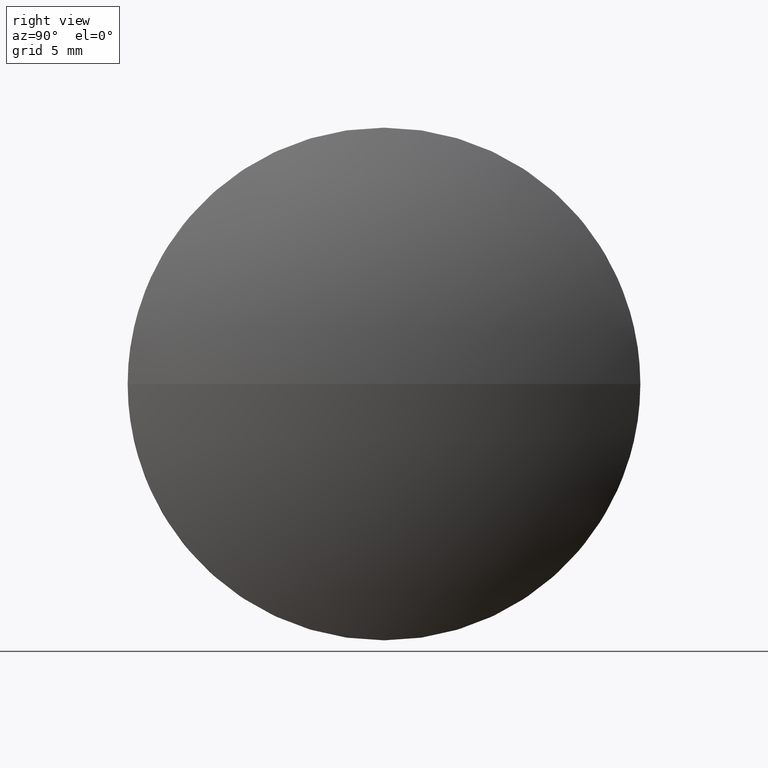
[diagram: clean part render]
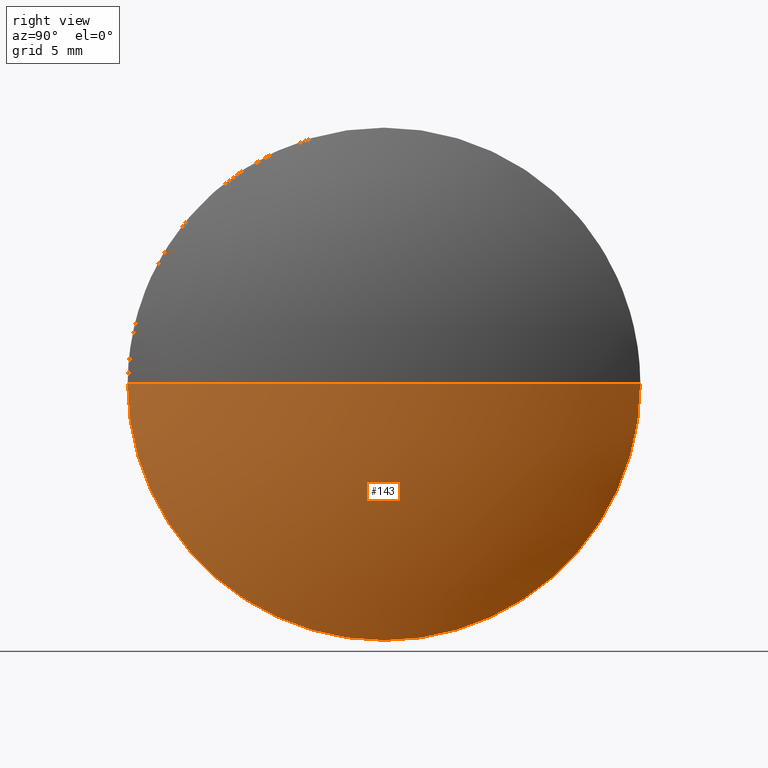
[diagram: same view with one face highlighted and labeled with its STEP entity id]
A machine part, right view. The second image highlights one B-rep face of the part: STEP entity #143.
In plain terms, the highlighted spherical surface has radius 25.8023 mm.
Its self-contained STEP definition (entity closure, byte-faithful):
#2 = CIRCLE ( 'NONE', #18, 25.80230650154791000 ) ;
#4 = EDGE_CURVE ( 'NONE', #39, #145, #2, .T. ) ;
#7 = CIRCLE ( 'NONE', #136, 25.80230650154793200 ) ;
#18 = AXIS2_PLACEMENT_3D ( 'NONE', #169, #153, #106 ) ;
#20 = EDGE_LOOP ( 'NONE', ( #22, #49, #50, #81 ) ) ;
#21 = EDGE_CURVE ( 'NONE', #173, #145, #96, .T. ) ;
#22 = ORIENTED_EDGE ( 'NONE', *, *, #181, .F. ) ;
#24 = DIRECTION ( 'NONE',  ( -1.000000000000000000, -0.0000000000000000000, -0.0000000000000000000 ) ) ;
#31 = DIRECTION ( 'NONE',  ( 0.0000000000000000000, -1.224646799147353200E-016, 1.000000000000000000 ) ) ;
#39 = VERTEX_POINT ( 'NONE', #123 ) ;
#42 = DIRECTION ( 'NONE',  ( 0.0000000000000000000, 0.0000000000000000000, 1.000000000000000000 ) ) ;
#49 = ORIENTED_EDGE ( 'NONE', *, *, #4, .T. ) ;
#50 = ORIENTED_EDGE ( 'NONE', *, *, #21, .F. ) ;
#54 = CARTESIAN_POINT ( 'NONE',  ( 556.3357775414822300, 36.89370908063153800, 0.0000000000000000000 ) ) ;
#55 = CARTESIAN_POINT ( 'NONE',  ( 556.3357775414822300, 24.39370908063157700, 0.0000000000000000000 ) ) ;
#57 = DIRECTION ( 'NONE',  ( 0.0000000000000000000, -1.000000000000000000, -1.224646799147353200E-016 ) ) ;
#68 = DIRECTION ( 'NONE',  ( 0.0000000000000000000, 0.0000000000000000000, 1.000000000000000000 ) ) ;
#69 = DIRECTION ( 'NONE',  ( -1.000000000000000000, -0.0000000000000000000, -0.0000000000000000000 ) ) ;
#73 = SPHERICAL_SURFACE ( 'NONE', #144, 25.80230650154793200 ) ;
#81 = ORIENTED_EDGE ( 'NONE', *, *, #132, .F. ) ;
#96 = CIRCLE ( 'NONE', #142, 12.49999999999999600 ) ;
#106 = DIRECTION ( 'NONE',  ( -1.000000000000000000, 0.0000000000000000000, 0.0000000000000000000 ) ) ;
#107 = CIRCLE ( 'NONE', #146, 12.49999999999999600 ) ;
#111 = CARTESIAN_POINT ( 'NONE',  ( 556.3357775414822300, 36.89370908063153800, -12.49999999999999600 ) ) ;
#120 = CARTESIAN_POINT ( 'NONE',  ( 533.7634710399343000, 36.89370908063155200, 0.0000000000000000000 ) ) ;
#123 = CARTESIAN_POINT ( 'NONE',  ( 559.5657775414821300, 36.89370908063155200, 0.0000000000000000000 ) ) ;
#132 = EDGE_CURVE ( 'NONE', #184, #173, #107, .T. ) ;
#136 = AXIS2_PLACEMENT_3D ( 'NONE', #159, #31, #57 ) ;
#137 = DIRECTION ( 'NONE',  ( 0.0000000000000000000, -1.000000000000000000, 0.0000000000000000000 ) ) ;
#138 = DIRECTION ( 'NONE',  ( 0.0000000000000000000, 0.0000000000000000000, 1.000000000000000000 ) ) ;
#142 = AXIS2_PLACEMENT_3D ( 'NONE', #154, #69, #138 ) ;
#143 = ADVANCED_FACE ( 'NONE', ( #186 ), #73, .T. ) ;
#144 = AXIS2_PLACEMENT_3D ( 'NONE', #120, #42, #137 ) ;
#145 = VERTEX_POINT ( 'NONE', #55 ) ;
#146 = AXIS2_PLACEMENT_3D ( 'NONE', #54, #24, #68 ) ;
#153 = DIRECTION ( 'NONE',  ( 0.0000000000000000000, 0.0000000000000000000, -1.000000000000000000 ) ) ;
#154 = CARTESIAN_POINT ( 'NONE',  ( 556.3357775414822300, 36.89370908063153800, 0.0000000000000000000 ) ) ;
#159 = CARTESIAN_POINT ( 'NONE',  ( 533.7634710399343000, 36.89370908063155200, 0.0000000000000000000 ) ) ;
#169 = CARTESIAN_POINT ( 'NONE',  ( 533.7634710399343000, 36.89370908063155200, 0.0000000000000000000 ) ) ;
#173 = VERTEX_POINT ( 'NONE', #111 ) ;
#181 = EDGE_CURVE ( 'NONE', #39, #184, #7, .T. ) ;
#184 = VERTEX_POINT ( 'NONE', #185 ) ;
#185 = CARTESIAN_POINT ( 'NONE',  ( 556.3357775414822300, 49.39370908063151700, 1.530808498934187200E-015 ) ) ;
#186 = FACE_OUTER_BOUND ( 'NONE', #20, .T. ) ;